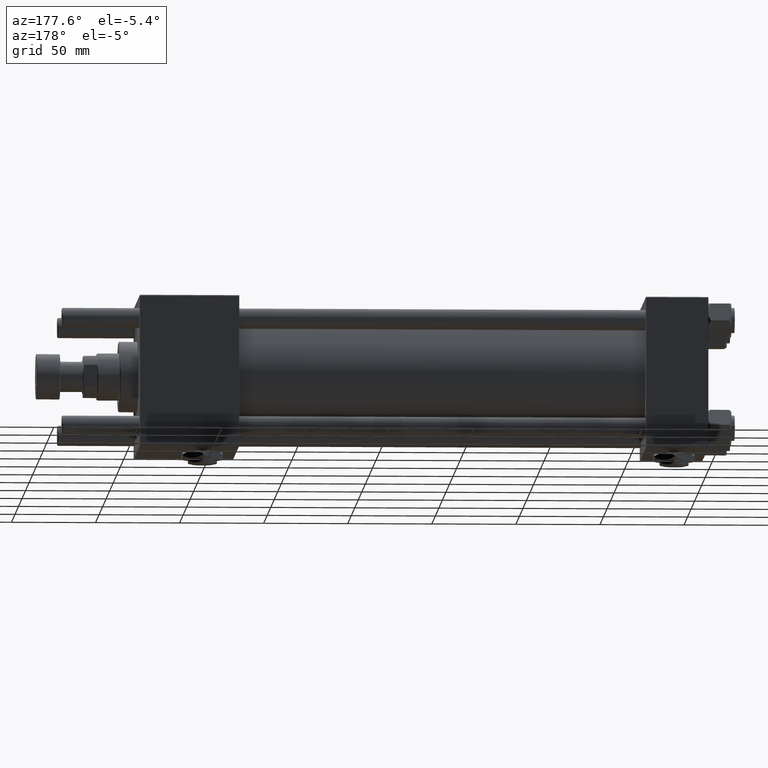
[diagram: clean part render]
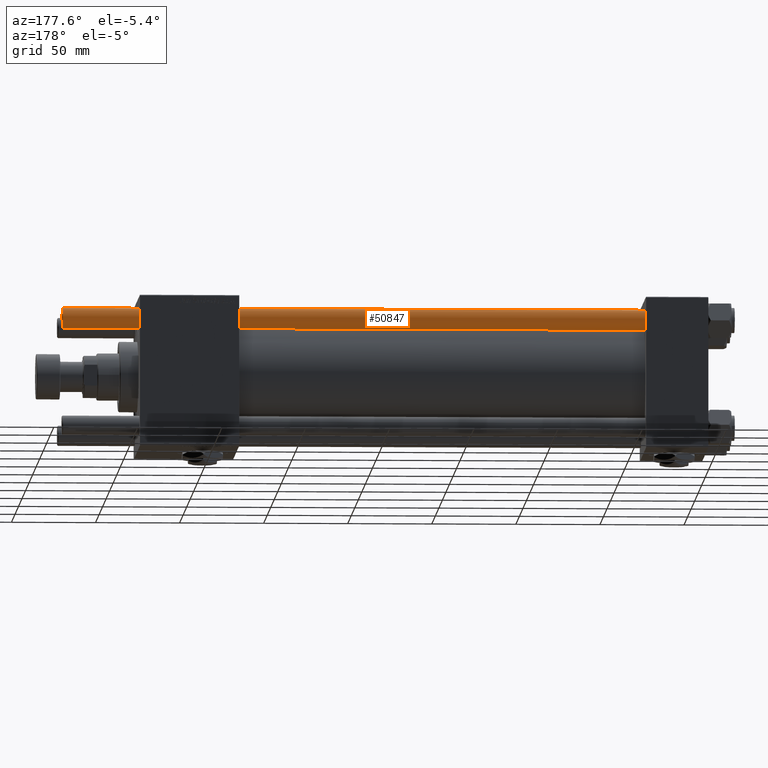
[diagram: same view with one face highlighted and labeled with its STEP entity id]
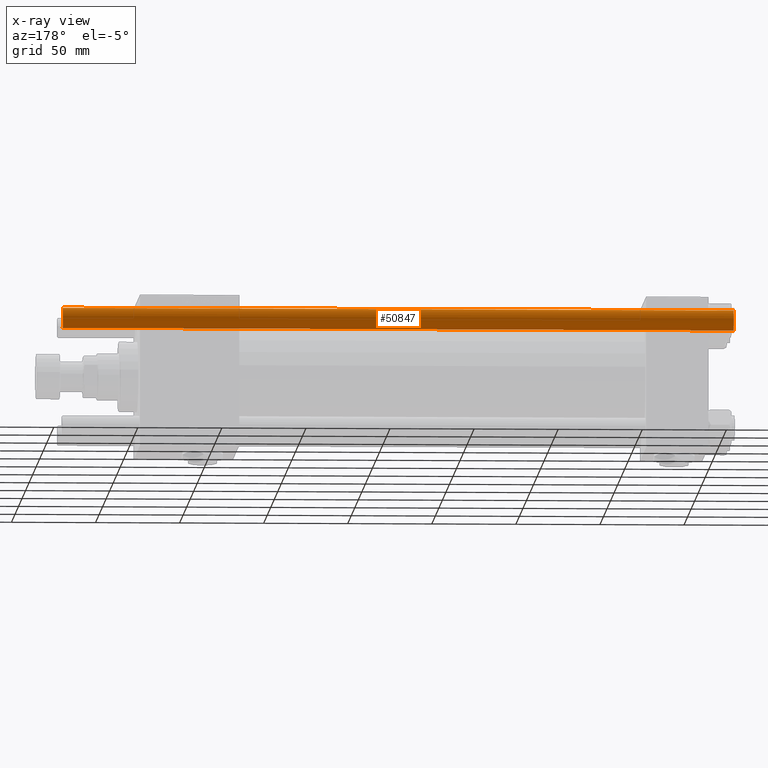
[diagram: x-ray of the same camera — body ghosted, the highlighted face saturated]
A machine part, auxiliary view. The second image highlights one B-rep face of the part: STEP entity #50847.
The next image is the same camera in x-ray: the body ghosted, the highlighted face saturated — about 0% of this face is hidden behind the body in this view.
In plain terms, the highlighted cylindrical surface (edge-blend (fillet) strip) has radius 6 mm, axis along (1, -0, -0).
Its self-contained STEP definition (entity closure, byte-faithful):
#227 = CARTESIAN_POINT ( 'NONE',  ( 6.000000000000000888, 7.347880794884120722E-16, 399.5000000000000000 ) ) ;
#2858 = VERTEX_POINT ( 'NONE', #11647 ) ;
#3147 = EDGE_LOOP ( 'NONE', ( #45452, #36563, #50210, #9329 ) ) ;
#4682 = VERTEX_POINT ( 'NONE', #50792 ) ;
#9329 = ORIENTED_EDGE ( 'NONE', *, *, #14794, .F. ) ;
#10714 = VERTEX_POINT ( 'NONE', #25348 ) ;
#11647 = CARTESIAN_POINT ( 'NONE',  ( -6.000000000000000888, 0.000000000000000000, 399.5000000000000000 ) ) ;
#12318 = DIRECTION ( 'NONE',  ( -1.000000000000000000, 0.000000000000000000, 0.000000000000000000 ) ) ;
#12793 = VERTEX_POINT ( 'NONE', #227 ) ;
#13003 = CARTESIAN_POINT ( 'NONE',  ( 6.000000000000000888, 7.347880794884120722E-16, 400.0000000000000000 ) ) ;
#14193 = EDGE_CURVE ( 'NONE', #12793, #10714, #26492, .T. ) ;
#14794 = EDGE_CURVE ( 'NONE', #2858, #4682, #16698, .T. ) ;
#15373 = AXIS2_PLACEMENT_3D ( 'NONE', #38452, #37870, #33083 ) ;
#16698 = LINE ( 'NONE', #25393, #28681 ) ;
#16700 = EDGE_CURVE ( 'NONE', #2858, #12793, #19182, .T. ) ;
#18805 = EDGE_CURVE ( 'NONE', #10714, #4682, #53682, .T. ) ;
#19182 = CIRCLE ( 'NONE', #15373, 6.000000000000000888 ) ;
#20428 = CARTESIAN_POINT ( 'NONE',  ( 0.000000000000000000, 0.000000000000000000, 400.0000000000000000 ) ) ;
#25348 = CARTESIAN_POINT ( 'NONE',  ( 6.000000000000000888, 7.347880794884120722E-16, 0.5000000000000004441 ) ) ;
#25393 = CARTESIAN_POINT ( 'NONE',  ( -6.000000000000000888, 0.000000000000000000, 400.0000000000000000 ) ) ;
#25508 = DIRECTION ( 'NONE',  ( 1.000000000000000000, 0.000000000000000000, 0.000000000000000000 ) ) ;
#25819 = VECTOR ( 'NONE', #54334, 1000.000000000000000 ) ;
#26492 = LINE ( 'NONE', #13003, #25819 ) ;
#28681 = VECTOR ( 'NONE', #43953, 1000.000000000000000 ) ;
#33083 = DIRECTION ( 'NONE',  ( 1.000000000000000000, 0.000000000000000000, 0.000000000000000000 ) ) ;
#35095 = DIRECTION ( 'NONE',  ( -0.000000000000000000, -0.000000000000000000, 1.000000000000000000 ) ) ;
#36563 = ORIENTED_EDGE ( 'NONE', *, *, #14193, .T. ) ;
#37870 = DIRECTION ( 'NONE',  ( 0.000000000000000000, 0.000000000000000000, -1.000000000000000000 ) ) ;
#38452 = CARTESIAN_POINT ( 'NONE',  ( 0.000000000000000000, 0.000000000000000000, 399.5000000000000000 ) ) ;
#39593 = DIRECTION ( 'NONE',  ( -0.000000000000000000, -0.000000000000000000, -1.000000000000000000 ) ) ;
#43195 = CYLINDRICAL_SURFACE ( 'NONE', #46595, 6.000000000000000888 ) ;
#43953 = DIRECTION ( 'NONE',  ( -0.000000000000000000, -0.000000000000000000, -1.000000000000000000 ) ) ;
#45452 = ORIENTED_EDGE ( 'NONE', *, *, #16700, .T. ) ;
#46595 = AXIS2_PLACEMENT_3D ( 'NONE', #20428, #39593, #12318 ) ;
#48546 = CARTESIAN_POINT ( 'NONE',  ( 0.000000000000000000, 0.000000000000000000, 0.5000000000000004441 ) ) ;
#49833 = AXIS2_PLACEMENT_3D ( 'NONE', #48546, #35095, #25508 ) ;
#50210 = ORIENTED_EDGE ( 'NONE', *, *, #18805, .T. ) ;
#50792 = CARTESIAN_POINT ( 'NONE',  ( -6.000000000000000888, 0.000000000000000000, 0.5000000000000004441 ) ) ;
#50847 = ADVANCED_FACE ( 'NONE', ( #53056 ), #43195, .T. ) ;
#53056 = FACE_OUTER_BOUND ( 'NONE', #3147, .T. ) ;
#53682 = CIRCLE ( 'NONE', #49833, 6.000000000000000888 ) ;
#54334 = DIRECTION ( 'NONE',  ( -0.000000000000000000, -0.000000000000000000, -1.000000000000000000 ) ) ;